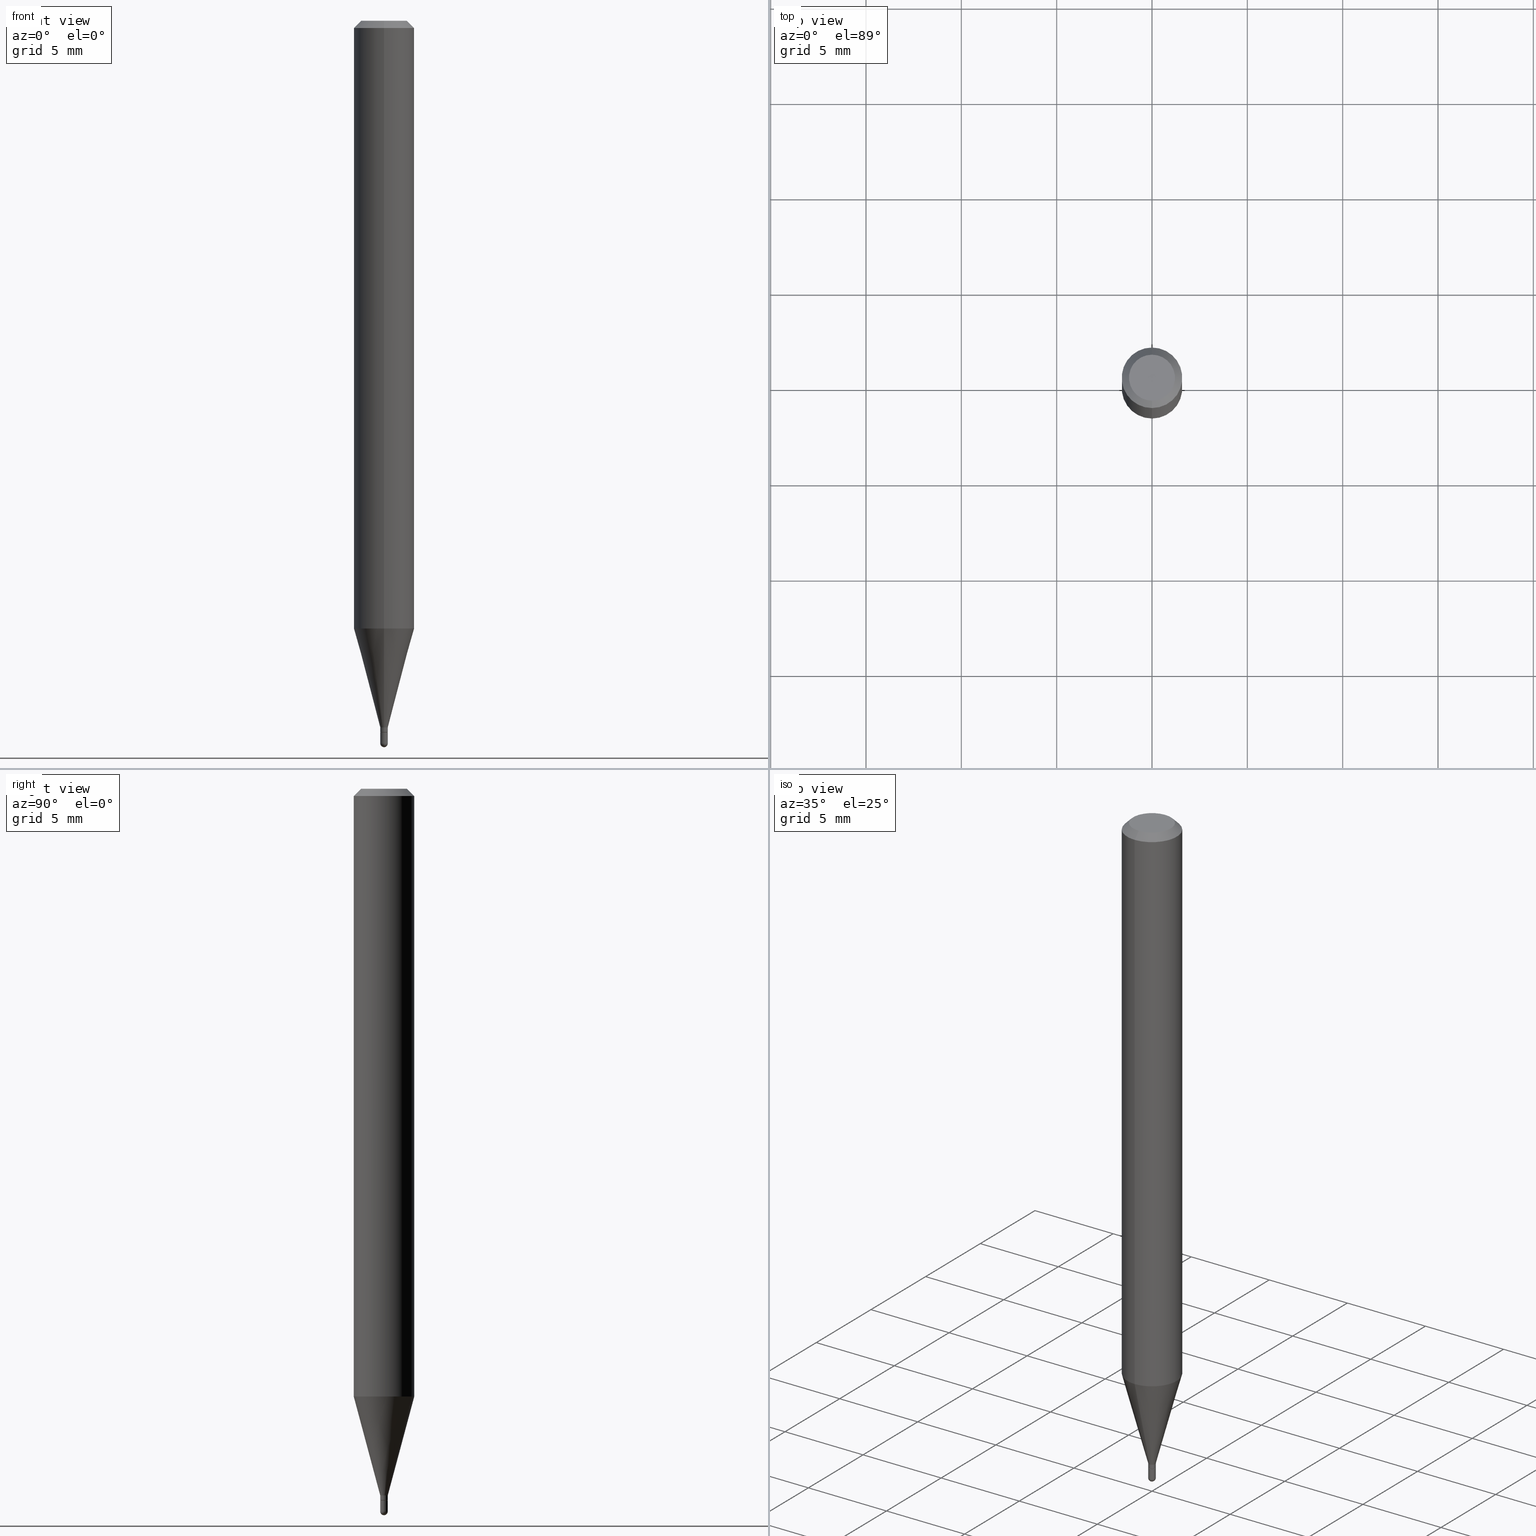
[diagram: canonical four-view strip — front | top / right | iso, engineering-drawing reading convention]
A machine part, canonical four-view strip (front | top / right | iso — engineering-drawing reading convention). The complete STEP part file that produces these views, byte-faithful:
ISO-10303-21;
HEADER;
FILE_DESCRIPTION (( 'STEP AP203' ),
    '1' );
FILE_NAME ('39302.STEP',
    '2024-03-08T12:46:57',
    ( '' ),
    ( '' ),
    'SwSTEP 2.0',
    'SolidWorks 2023',
    '' );
FILE_SCHEMA (( 'CONFIG_CONTROL_DESIGN' ));
ENDSEC;

DATA;
#1 = LINE ( 'NONE', #476, #442 ) ;
#2 = CARTESIAN_POINT ( 'NONE',  ( 3.581875070033715144E-29, -5.140552563667326600E-15, -1.468500000000000805 ) ) ;
#3 = ADVANCED_FACE ( 'NONE', ( #139 ), #146, .T. ) ;
#4 = PERSON_AND_ORGANIZATION_ROLE ( 'creator' ) ;
#5 = VERTEX_POINT ( 'NONE', #147 ) ;
#6 = CARTESIAN_POINT ( 'NONE',  ( 3.658707936704612906E-31, -5.250819779027040466E-17, -0.01500000000000043313 ) ) ;
#7 = APPLICATION_CONTEXT ( 'configuration controlled 3d designs of mechanical parts and assemblies' ) ;
#8 = AXIS2_PLACEMENT_3D ( 'NONE', #173, #135, #216 ) ;
#9 = AXIS2_PLACEMENT_3D ( 'NONE', #503, #312, #76 ) ;
#10 = APPLICATION_PROTOCOL_DEFINITION ( 'international standard', 'config_control_design', 1994, #239 ) ;
#11 = ORIENTED_EDGE ( 'NONE', *, *, #425, .T. ) ;
#12 = PERSON_AND_ORGANIZATION ( #66, #74 ) ;
#13 = EDGE_CURVE ( 'NONE', #84, #385, #509, .T. ) ;
#14 = COORDINATED_UNIVERSAL_TIME_OFFSET ( 5, 0, .BEHIND. ) ;
#15 = CARTESIAN_POINT ( 'NONE',  ( 3.840629472727450339E-16, 0.04750000000000004219, -5.999736927781643760E-16 ) ) ;
#16 = ORIENTED_EDGE ( 'NONE', *, *, #22, .T. ) ;
#17 = APPROVAL_DATE_TIME ( #406, #407 ) ;
#18 = DESIGN_CONTEXT ( 'detailed design', #7, 'design' ) ;
#19 = VERTEX_POINT ( 'NONE', #69 ) ;
#20 = PERSON_AND_ORGANIZATION ( #66, #74 ) ;
#21 = AXIS2_PLACEMENT_3D ( 'NONE', #264, #226, #35 ) ;
#22 = EDGE_CURVE ( 'NONE', #203, #402, #218, .T. ) ;
#23 = APPROVAL_ROLE ( '' ) ;
#24 = DIRECTION ( 'NONE',  ( 1.000000000000000000, -6.982962677686294321E-15, 0.000000000000000000 ) ) ;
#25 = EDGE_CURVE ( 'NONE', #385, #84, #308, .T. ) ;
#26 = CARTESIAN_POINT ( 'NONE',  ( 0.000000000000000000, 0.000000000000000000, 0.000000000000000000 ) ) ;
#27 = CALENDAR_DATE ( 2024, 8, 3 ) ;
#28 = DIRECTION ( 'NONE',  ( 6.982962677686265922E-15, 1.000000000000000000, -3.517254291842738179E-15 ) ) ;
#29 = DIRECTION ( 'NONE',  ( -2.439138624469671930E-29, 3.500546519351259222E-15, 1.000000000000000000 ) ) ;
#30 = AXIS2_PLACEMENT_3D ( 'NONE', #398, #209, #362 ) ;
#31 = EDGE_CURVE ( 'NONE', #361, #507, #276, .T. ) ;
#32 = CARTESIAN_POINT ( 'NONE',  ( 5.542233338931899045E-17, 0.007799999999994273320, -1.459000000000000519 ) ) ;
#33 = FACE_OUTER_BOUND ( 'NONE', #70, .T. ) ;
#34 = ORIENTED_EDGE ( 'NONE', *, *, #400, .F. ) ;
#35 = DIRECTION ( 'NONE',  ( 7.105427357601000281E-15, 1.000000000000000000, 0.000000000000000000 ) ) ;
#36 = DIRECTION ( 'NONE',  ( -2.439138624469671930E-29, 3.500546519351259222E-15, 1.000000000000000000 ) ) ;
#37 = AXIS2_PLACEMENT_3D ( 'NONE', #228, #162, #278 ) ;
#38 = DIRECTION ( 'NONE',  ( -2.439138624469671930E-29, 3.500546519351259222E-15, 1.000000000000000000 ) ) ;
#39 = ADVANCED_FACE ( 'NONE', ( #285 ), #479, .F. ) ;
#40 = CYLINDRICAL_SURFACE ( 'NONE', #197, 0.06250000000000001388 ) ;
#41 = EDGE_LOOP ( 'NONE', ( #432, #236, #460, #282 ) ) ;
#42 = DIRECTION ( 'NONE',  ( 1.000000000000000000, -6.982962677686265922E-15, 4.883557194083112901E-29 ) ) ;
#43 = CALENDAR_DATE ( 2024, 8, 3 ) ;
#44 = FACE_OUTER_BOUND ( 'NONE', #210, .T. ) ;
#45 = ORIENTED_EDGE ( 'NONE', *, *, #400, .T. ) ;
#46 = CIRCLE ( 'NONE', #183, 0.04750000000000004219 ) ;
#47 = PERSON_AND_ORGANIZATION_ROLE ( 'design_supplier' ) ;
#48 = ADVANCED_FACE ( 'NONE', ( #44 ), #376, .T. ) ;
#49 = VERTEX_POINT ( 'NONE', #153 ) ;
#50 = FACE_OUTER_BOUND ( 'NONE', #118, .T. ) ;
#51 = ORIENTED_EDGE ( 'NONE', *, *, #150, .T. ) ;
#52 = PERSON_AND_ORGANIZATION ( #66, #74 ) ;
#53 = ORIENTED_EDGE ( 'NONE', *, *, #215, .T. ) ;
#54 = ORIENTED_EDGE ( 'NONE', *, *, #63, .F. ) ;
#55 = AXIS2_PLACEMENT_3D ( 'NONE', #446, #98, #217 ) ;
#56 = VECTOR ( 'NONE', #496, 39.37007874015748143 ) ;
#57 = DIRECTION ( 'NONE',  ( -4.937700262167293278E-15, -0.7071067811869382602, 0.7071067811861568853 ) ) ;
#58 = CARTESIAN_POINT ( 'NONE',  ( 5.186961971052139529E-17, 0.007299999999994612014, -1.469000000000000306 ) ) ;
#59 = ADVANCED_FACE ( 'NONE', ( #317 ), #113, .T. ) ;
#60 = DIRECTION ( 'NONE',  ( -2.445468806185136877E-29, 3.491481338843145188E-15, 1.000000000000000000 ) ) ;
#61 = CIRCLE ( 'NONE', #443, 0.007799999999999709076 ) ;
#62 = EDGE_CURVE ( 'NONE', #385, #319, #1, .T. ) ;
#63 = EDGE_CURVE ( 'NONE', #49, #507, #61, .T. ) ;
#64 = ADVANCED_FACE ( 'NONE', ( #351 ), #156, .T. ) ;
#65 = CONICAL_SURFACE ( 'NONE', #222, 0.06250000000000001388, 0.7853981633974473908 ) ;
#66 = PERSON ( 'UNSPECIFIED', 'UNSPECIFIED', 'UNSPECIFIED', ('UNSPECIFIED'), ('UNSPECIFIED'), ('UNSPECIFIED') ) ;
#67 = DIRECTION ( 'NONE',  ( -6.982962677686265133E-15, -1.000000000000000000, 3.500546519351259616E-15 ) ) ;
#68 = LINE ( 'NONE', #378, #56 ) ;
#69 = CARTESIAN_POINT ( 'NONE',  ( -3.773273898774342241E-16, -0.04750000000000004219, -2.674217734397944423E-16 ) ) ;
#70 = EDGE_LOOP ( 'NONE', ( #192, #166 ) ) ;
#71 = DIRECTION ( 'NONE',  ( 6.982962677686265922E-15, 1.000000000000000000, -3.500546519351259222E-15 ) ) ;
#72 = DIRECTION ( 'NONE',  ( -6.982962677686265922E-15, -1.000000000000000000, 3.517254291842738179E-15 ) ) ;
#73 = CIRCLE ( 'NONE', #341, 0.007799999999999709076 ) ;
#74 = ORGANIZATION ( 'UNSPECIFIED', 'UNSPECIFIED', '' ) ;
#75 = FACE_OUTER_BOUND ( 'NONE', #248, .T. ) ;
#76 = DIRECTION ( 'NONE',  ( -6.982962677686265922E-15, -1.000000000000000000, 3.500546519351259222E-15 ) ) ;
#77 = ORIENTED_EDGE ( 'NONE', *, *, #221, .F. ) ;
#78 = ORIENTED_EDGE ( 'NONE', *, *, #208, .T. ) ;
#79 = CARTESIAN_POINT ( 'NONE',  ( -4.364351673553612983E-16, -0.06250000000000442701, -1.254856820825980934 ) ) ;
#80 = DIRECTION ( 'NONE',  ( 1.000000000000000000, -6.982962677686266711E-15, 4.876176775795935232E-29 ) ) ;
#81 = EDGE_CURVE ( 'NONE', #19, #246, #46, .T. ) ;
#82 = CARTESIAN_POINT ( 'NONE',  ( 0.000000000000000000, 0.000000000000000000, 0.000000000000000000 ) ) ;
#83 =( NAMED_UNIT ( * ) PLANE_ANGLE_UNIT ( ) SI_UNIT ( $, .RADIAN. ) );
#84 = VERTEX_POINT ( 'NONE', #505 ) ;
#85 = CLOSED_SHELL ( 'NONE', ( #3, #64, #311, #284, #261, #48, #131, #493, #39, #500, #263, #120 ) ) ;
#86 = CIRCLE ( 'NONE', #129, 0.007799999999999380346 ) ;
#87 = APPROVAL_STATUS ( 'not_yet_approved' ) ;
#88 = DIRECTION ( 'NONE',  ( -6.982962677686266711E-15, -1.000000000000000000, 0.000000000000000000 ) ) ;
#89 = EDGE_LOOP ( 'NONE', ( #396, #390, #114, #34 ) ) ;
#90 = ORIENTED_EDGE ( 'NONE', *, *, #367, .T. ) ;
#91 = DIRECTION ( 'NONE',  ( -2.439138624469671930E-29, 3.500546519351259222E-15, 1.000000000000000000 ) ) ;
#92 = ORIENTED_EDGE ( 'NONE', *, *, #306, .F. ) ;
#93 = EDGE_LOOP ( 'NONE', ( #140, #459, #346, #99 ) ) ;
#94 = CC_DESIGN_DATE_AND_TIME_ASSIGNMENT ( #413, #101, ( #418 ) ) ;
#95 = AXIS2_PLACEMENT_3D ( 'NONE', #299, #29, #259 ) ;
#96 = CALENDAR_DATE ( 2024, 8, 3 ) ;
#97 = ORIENTED_EDGE ( 'NONE', *, *, #81, .T. ) ;
#98 = DIRECTION ( 'NONE',  ( -2.439138624469671930E-29, 3.500546519351259222E-15, 1.000000000000000000 ) ) ;
#99 = ORIENTED_EDGE ( 'NONE', *, *, #100, .F. ) ;
#100 = EDGE_CURVE ( 'NONE', #447, #364, #469, .T. ) ;
#101 = DATE_TIME_ROLE ( 'creation_date' ) ;
#102 = AXIS2_PLACEMENT_3D ( 'NONE', #138, #256, #207 ) ;
#103 = CIRCLE ( 'NONE', #185, 0.007299999999999754602 ) ;
#104 = CARTESIAN_POINT ( 'NONE',  ( 3.649128552589461564E-29, -5.209988453821742721E-15, -1.492200000000000193 ) ) ;
#105 = DIRECTION ( 'NONE',  ( -6.982962677686265922E-15, -1.000000000000000000, 0.000000000000000000 ) ) ;
#106 = CC_DESIGN_PERSON_AND_ORGANIZATION_ASSIGNMENT ( #438, #301, ( #494 ) ) ;
#107 = ORIENTED_EDGE ( 'NONE', *, *, #155, .F. ) ;
#108 = DIRECTION ( 'NONE',  ( -2.439138624469671930E-29, 3.500546519351259222E-15, 1.000000000000000000 ) ) ;
#109 = DIRECTION ( 'NONE',  ( -2.439138624469671930E-29, 3.500546519351259222E-15, 1.000000000000000000 ) ) ;
#110 = VECTOR ( 'NONE', #405, 39.37007874015748143 ) ;
#111 = VECTOR ( 'NONE', #36, 39.37007874015748143 ) ;
#112 = EDGE_CURVE ( 'NONE', #411, #477, #272, .T. ) ;
#113 = SPHERICAL_SURFACE ( 'NONE', #158, 0.007800000000000068164 ) ;
#114 = ORIENTED_EDGE ( 'NONE', *, *, #241, .T. ) ;
#115 = DIRECTION ( 'NONE',  ( -1.000000000000000000, 6.982962677686265922E-15, -4.883557194083112340E-29 ) ) ;
#116 = AXIS2_PLACEMENT_3D ( 'NONE', #412, #343, #145 ) ;
#117 = AXIS2_PLACEMENT_3D ( 'NONE', #167, #42, #359 ) ;
#118 = EDGE_LOOP ( 'NONE', ( #358, #328, #92, #489 ) ) ;
#119 = DIRECTION ( 'NONE',  ( -6.982962677686266711E-15, -1.000000000000000000, 0.000000000000000000 ) ) ;
#120 = ADVANCED_FACE ( 'NONE', ( #324 ), #422, .T. ) ;
#121 = APPROVAL_DATE_TIME ( #164, #315 ) ;
#122 = CYLINDRICAL_SURFACE ( 'NONE', #330, 0.007799999999999709076 ) ;
#123 = DIRECTION ( 'NONE',  ( 1.000000000000000000, -6.982962677686265922E-15, 4.883557194083112901E-29 ) ) ;
#124 = CARTESIAN_POINT ( 'NONE',  ( 3.658707936704612906E-31, -5.250819779027040466E-17, -0.01500000000000043313 ) ) ;
#125 = ORIENTED_EDGE ( 'NONE', *, *, #221, .T. ) ;
#126 = CARTESIAN_POINT ( 'NONE',  ( -5.446710888591296590E-17, -0.007800000000004487372, -1.459000000000000519 ) ) ;
#127 = DIRECTION ( 'NONE',  ( -2.439138624469671930E-29, 3.500546519351259222E-15, 1.000000000000000000 ) ) ;
#128 = EDGE_LOOP ( 'NONE', ( #206, #332, #54, #77, #11 ) ) ;
#129 = AXIS2_PLACEMENT_3D ( 'NONE', #180, #224, #339 ) ;
#130 = CALENDAR_DATE ( 2024, 8, 3 ) ;
#131 = ADVANCED_FACE ( 'NONE', ( #75 ), #40, .T. ) ;
#132 = EDGE_LOOP ( 'NONE', ( #392, #51 ) ) ;
#133 = PERSON_AND_ORGANIZATION ( #66, #74 ) ;
#134 = DIRECTION ( 'NONE',  ( 1.000000000000000000, -6.982962677686294321E-15, 0.000000000000000000 ) ) ;
#135 = DIRECTION ( 'NONE',  ( -2.439138624469671930E-29, 3.500546519351259222E-15, 1.000000000000000000 ) ) ;
#136 = ORIENTED_EDGE ( 'NONE', *, *, #355, .F. ) ;
#137 = AXIS2_PLACEMENT_3D ( 'NONE', #193, #508, #119 ) ;
#138 = CARTESIAN_POINT ( 'NONE',  ( 5.446710888598677370E-17, 0.007799999999994580366, -1.469000000000000750 ) ) ;
#139 = FACE_OUTER_BOUND ( 'NONE', #93, .T. ) ;
#140 = ORIENTED_EDGE ( 'NONE', *, *, #379, .T. ) ;
#141 = MANIFOLD_SOLID_BREP ( 'Body-Move/Copy2[1]', #195 ) ;
#142 = DIMENSIONAL_EXPONENTS ( 1.000000000000000000, 0.000000000000000000, 0.000000000000000000, 0.000000000000000000, 0.000000000000000000, 0.000000000000000000, 0.000000000000000000 ) ;
#143 = LOCAL_TIME ( 7, 46, 57.00000000000000000, #14 ) ;
#144 = DIRECTION ( 'NONE',  ( 1.000000000000000000, -6.982962677686294321E-15, 0.000000000000000000 ) ) ;
#145 = DIRECTION ( 'NONE',  ( -6.982962677686265922E-15, -1.000000000000000000, 4.370956789862819572E-15 ) ) ;
#146 = CYLINDRICAL_SURFACE ( 'NONE', #250, 0.007799999999999657901 ) ;
#147 = CARTESIAN_POINT ( 'NONE',  ( -5.097562754707219593E-17, -0.007300000000004897190, -1.469000000000000306 ) ) ;
#148 = AXIS2_PLACEMENT_3D ( 'NONE', #485, #487, #334 ) ;
#149 = VECTOR ( 'NONE', #495, 39.37007874015748143 ) ;
#150 = EDGE_CURVE ( 'NONE', #507, #49, #257, .T. ) ;
#151 = ORIENTED_EDGE ( 'NONE', *, *, #215, .F. ) ;
#152 = CARTESIAN_POINT ( 'NONE',  ( 3.649128552589461564E-29, -5.209988453821742721E-15, -1.492200000000000193 ) ) ;
#153 = CARTESIAN_POINT ( 'NONE',  ( 0.007799999999999709076, -5.183453195646533500E-15, -1.469000000000000750 ) ) ;
#154 = CARTESIAN_POINT ( 'NONE',  ( 3.583094639345949024E-29, -5.142302836927000469E-15, -1.469000000000000306 ) ) ;
#155 = EDGE_CURVE ( 'NONE', #246, #326, #483, .T. ) ;
#156 = CONICAL_SURFACE ( 'NONE', #403, 0.007299999999999754602, 0.7853981633980042787 ) ;
#157 = DIRECTION ( 'NONE',  ( 1.000000000000000000, -6.982962677686266711E-15, 4.876176775795935232E-29 ) ) ;
#158 = AXIS2_PLACEMENT_3D ( 'NONE', #382, #123, #201 ) ;
#159 = CIRCLE ( 'NONE', #502, 0.007799999999999709076 ) ;
#160 = DIRECTION ( 'NONE',  ( -6.982962677686265133E-15, -1.000000000000000000, 3.500546519351259616E-15 ) ) ;
#161 = ORIENTED_EDGE ( 'NONE', *, *, #81, .F. ) ;
#162 = DIRECTION ( 'NONE',  ( -2.439138624469671930E-29, 3.500546519351259222E-15, 1.000000000000000000 ) ) ;
#163 = SECURITY_CLASSIFICATION_LEVEL ( 'unclassified' ) ;
#164 = DATE_AND_TIME ( #43, #354 ) ;
#165 = DIRECTION ( 'NONE',  ( -2.439138624469671930E-29, 3.500546519351259222E-15, 1.000000000000000000 ) ) ;
#166 = ORIENTED_EDGE ( 'NONE', *, *, #454, .F. ) ;
#167 = CARTESIAN_POINT ( 'NONE',  ( 3.434669950589054174E-29, -5.517105378111915335E-15, -1.492200000000000193 ) ) ;
#168 =( NAMED_UNIT ( * ) SI_UNIT ( $, .STERADIAN. ) SOLID_ANGLE_UNIT ( ) );
#169 = DIRECTION ( 'NONE',  ( 5.024295867790855746E-15, 0.7071067811869431452, 0.7071067811861520003 ) ) ;
#170 = CONICAL_SURFACE ( 'NONE', #8, 0.007799999999999380346, 0.2617993877991502960 ) ;
#171 = MECHANICAL_CONTEXT ( 'NONE', #239, 'mechanical' ) ;
#172 = ORIENTED_EDGE ( 'NONE', *, *, #100, .T. ) ;
#173 = CARTESIAN_POINT ( 'NONE',  ( 3.558703253101252922E-29, -5.107297371733488374E-15, -1.459000000000000519 ) ) ;
#174 = ORIENTED_EDGE ( 'NONE', *, *, #25, .T. ) ;
#175 = DATE_AND_TIME ( #27, #143 ) ;
#176 = CC_DESIGN_PERSON_AND_ORGANIZATION_ASSIGNMENT ( #179, #338, ( #418 ) ) ;
#177 = VECTOR ( 'NONE', #327, 39.37007874015748143 ) ;
#178 = CARTESIAN_POINT ( 'NONE',  ( 3.453411092424518502E-29, -5.544816544806560135E-15, -1.500000000000000444 ) ) ;
#179 = PERSON_AND_ORGANIZATION ( #66, #74 ) ;
#180 = CARTESIAN_POINT ( 'NONE',  ( 3.558703253101252922E-29, -5.107297371733488374E-15, -1.459000000000000519 ) ) ;
#181 = APPROVAL_DATE_TIME ( #175, #337 ) ;
#182 = EDGE_CURVE ( 'NONE', #84, #326, #437, .T. ) ;
#183 = AXIS2_PLACEMENT_3D ( 'NONE', #321, #38, #350 ) ;
#184 = CYLINDRICAL_SURFACE ( 'NONE', #200, 0.007799999999999709076 ) ;
#185 = AXIS2_PLACEMENT_3D ( 'NONE', #453, #109, #105 ) ;
#186 = ORIENTED_EDGE ( 'NONE', *, *, #306, .T. ) ;
#187 = EDGE_CURVE ( 'NONE', #203, #411, #363, .T. ) ;
#188 = AXIS2_PLACEMENT_3D ( 'NONE', #6, #254, #492 ) ;
#189 = CARTESIAN_POINT ( 'NONE',  ( 3.558703253101252922E-29, -5.107297371733488374E-15, -1.459000000000000519 ) ) ;
#190 = ADVANCED_FACE ( 'NONE', ( #194 ), #238, .F. ) ;
#191 = CARTESIAN_POINT ( 'NONE',  ( -0.007799999999999709076, 5.542233338928574736E-17, -3.836769370398683487E-31 ) ) ;
#192 = ORIENTED_EDGE ( 'NONE', *, *, #465, .F. ) ;
#193 = CARTESIAN_POINT ( 'NONE',  ( 3.581875070033715144E-29, -5.140552563667326600E-15, -1.468500000000000805 ) ) ;
#194 = FACE_OUTER_BOUND ( 'NONE', #132, .T. ) ;
#195 = CLOSED_SHELL ( 'NONE', ( #333, #59, #190, #375, #458 ) ) ;
#196 = FACE_OUTER_BOUND ( 'NONE', #399, .T. ) ;
#197 = AXIS2_PLACEMENT_3D ( 'NONE', #82, #240, #357 ) ;
#198 = ORIENTED_EDGE ( 'NONE', *, *, #13, .T. ) ;
#199 = DIRECTION ( 'NONE',  ( -6.982962677686265922E-15, -1.000000000000000000, 0.000000000000000000 ) ) ;
#200 = AXIS2_PLACEMENT_3D ( 'NONE', #424, #233, #157 ) ;
#201 = DIRECTION ( 'NONE',  ( -6.982962677686265922E-15, -1.000000000000000000, 0.000000000000000000 ) ) ;
#202 = DIRECTION ( 'NONE',  ( 2.439138624469671930E-29, -3.500546519351259222E-15, -1.000000000000000000 ) ) ;
#203 = VERTEX_POINT ( 'NONE', #178 ) ;
#204 = CARTESIAN_POINT ( 'NONE',  ( -5.446710888591296590E-17, -0.007800000000004487372, -1.459000000000000519 ) ) ;
#205 =( CONVERSION_BASED_UNIT ( 'INCH', #431 ) LENGTH_UNIT ( ) NAMED_UNIT ( #142 ) );
#206 = ORIENTED_EDGE ( 'NONE', *, *, #265, .T. ) ;
#207 = DIRECTION ( 'NONE',  ( -1.000000000000000000, 6.982962677686265922E-15, -4.876176775795935793E-29 ) ) ;
#208 = EDGE_CURVE ( 'NONE', #227, #364, #421, .T. ) ;
#209 = DIRECTION ( 'NONE',  ( 0.000000000000000000, 0.000000000000000000, 1.000000000000000000 ) ) ;
#210 = EDGE_LOOP ( 'NONE', ( #470, #78, #360, #232 ) ) ;
#211 = CONICAL_SURFACE ( 'NONE', #55, 0.007299999999999754602, 0.7853981633980042787 ) ;
#212 = LOCAL_TIME ( 7, 46, 57.00000000000000000, #448 ) ;
#213 = EDGE_LOOP ( 'NONE', ( #388, #440, #277, #356 ) ) ;
#214 = CARTESIAN_POINT ( 'NONE',  ( 4.364351673553921131E-16, 0.06249999999999996531, -0.01500000000000065344 ) ) ;
#215 = EDGE_CURVE ( 'NONE', #319, #326, #490, .T. ) ;
#216 = DIRECTION ( 'NONE',  ( -6.982962677686266711E-15, -1.000000000000000000, 0.000000000000000000 ) ) ;
#217 = DIRECTION ( 'NONE',  ( -6.982962677686265922E-15, -1.000000000000000000, 0.000000000000000000 ) ) ;
#218 = CIRCLE ( 'NONE', #21, 0.007800000000000068164 ) ;
#219 = CARTESIAN_POINT ( 'NONE',  ( 3.649128552589461564E-29, -5.209988453821742721E-15, -1.492200000000000193 ) ) ;
#220 = DIRECTION ( 'NONE',  ( 2.439138624469671930E-29, -3.500546519351259222E-15, -1.000000000000000000 ) ) ;
#221 = EDGE_CURVE ( 'NONE', #477, #49, #291, .T. ) ;
#222 = AXIS2_PLACEMENT_3D ( 'NONE', #450, #220, #28 ) ;
#223 = CIRCLE ( 'NONE', #37, 0.04750000000000004219 ) ;
#224 = DIRECTION ( 'NONE',  ( -2.439138624469671930E-29, 3.500546519351259222E-15, 1.000000000000000000 ) ) ;
#225 = EDGE_CURVE ( 'NONE', #340, #380, #482, .T. ) ;
#226 = DIRECTION ( 'NONE',  ( 1.000000000000000000, -7.105427357601001070E-15, 4.926315508542082329E-29 ) ) ;
#227 = VERTEX_POINT ( 'NONE', #290 ) ;
#228 = CARTESIAN_POINT ( 'NONE',  ( 1.057848892171050886E-44, -1.518179090085169302E-30, -4.336977331089794092E-16 ) ) ;
#229 = AXIS2_PLACEMENT_3D ( 'NONE', #510, #426, #160 ) ;
#230 = CIRCLE ( 'NONE', #348, 0.007799999999999936325 ) ;
#231 = CARTESIAN_POINT ( 'NONE',  ( 3.434669950589054174E-29, -5.517105378111915335E-15, -1.492200000000000193 ) ) ;
#232 = ORIENTED_EDGE ( 'NONE', *, *, #13, .F. ) ;
#233 = DIRECTION ( 'NONE',  ( -2.445468806185136597E-29, 3.491481338843145583E-15, 1.000000000000000000 ) ) ;
#234 = PRODUCT_DEFINITION_SHAPE ( 'NONE', 'NONE',  #418 ) ;
#235 = DIRECTION ( 'NONE',  ( -2.439138624469671930E-29, 3.500546519351259222E-15, 1.000000000000000000 ) ) ;
#236 = ORIENTED_EDGE ( 'NONE', *, *, #225, .T. ) ;
#237 = LINE ( 'NONE', #126, #468 ) ;
#238 = PLANE ( 'NONE',  #102 ) ;
#239 = APPLICATION_CONTEXT ( 'configuration controlled 3d designs of mechanical parts and assemblies' ) ;
#240 = DIRECTION ( 'NONE',  ( -2.439138624469671930E-29, 3.500546519351259222E-15, 1.000000000000000000 ) ) ;
#241 = EDGE_CURVE ( 'NONE', #5, #447, #249, .T. ) ;
#242 = ORIENTED_EDGE ( 'NONE', *, *, #62, .T. ) ;
#243 = PRODUCT_DEFINITION_FORMATION_WITH_SPECIFIED_SOURCE ( 'ANY', '', #494, .NOT_KNOWN. ) ;
#244 = CC_DESIGN_PERSON_AND_ORGANIZATION_ASSIGNMENT ( #12, #47, ( #243 ) ) ;
#245 = EDGE_LOOP ( 'NONE', ( #90, #97 ) ) ;
#246 = VERTEX_POINT ( 'NONE', #15 ) ;
#247 = ADVANCED_BREP_SHAPE_REPRESENTATION ( '39302', ( #141, #462, #30 ), #304 ) ;
#248 = EDGE_LOOP ( 'NONE', ( #373, #198, #242, #136 ) ) ;
#249 = LINE ( 'NONE', #404, #501 ) ;
#250 = AXIS2_PLACEMENT_3D ( 'NONE', #26, #456, #67 ) ;
#251 = LOCAL_TIME ( 7, 46, 57.00000000000000000, #294 ) ;
#252 = ORIENTED_EDGE ( 'NONE', *, *, #484, .F. ) ;
#253 = APPROVAL_STATUS ( 'not_yet_approved' ) ;
#254 = DIRECTION ( 'NONE',  ( -2.439138624469671930E-29, 3.500546519351259222E-15, 1.000000000000000000 ) ) ;
#255 = ORIENTED_EDGE ( 'NONE', *, *, #187, .F. ) ;
#256 = DIRECTION ( 'NONE',  ( 2.438088387897960049E-29, -3.491481338843145188E-15, -1.000000000000000000 ) ) ;
#257 = CIRCLE ( 'NONE', #286, 0.007799999999999709076 ) ;
#258 = AXIS2_PLACEMENT_3D ( 'NONE', #512, #316, #72 ) ;
#259 = DIRECTION ( 'NONE',  ( -6.982962677686265922E-15, -1.000000000000000000, 4.370956789862819572E-15 ) ) ;
#260 = APPROVAL_ROLE ( '' ) ;
#261 = ADVANCED_FACE ( 'NONE', ( #368 ), #170, .T. ) ;
#262 = ORIENTED_EDGE ( 'NONE', *, *, #31, .F. ) ;
#263 = ADVANCED_FACE ( 'NONE', ( #298 ), #211, .T. ) ;
#264 = CARTESIAN_POINT ( 'NONE',  ( 3.434669950589054174E-29, -5.517105378111915335E-15, -1.492200000000000193 ) ) ;
#265 = EDGE_CURVE ( 'NONE', #402, #361, #73, .T. ) ;
#266 = ORIENTED_EDGE ( 'NONE', *, *, #484, .T. ) ;
#267 = CARTESIAN_POINT ( 'NONE',  ( 5.364597654992228212E-17, 0.007299999999994612014, -1.469000000000000306 ) ) ;
#268 = CARTESIAN_POINT ( 'NONE',  ( 3.316907271900979054E-16, 0.04750000000000004219, -3.831248262236746468E-16 ) ) ;
#269 = CARTESIAN_POINT ( 'NONE',  ( 4.440892098500935790E-16, 0.06249999999999996531, -0.01500000000000065344 ) ) ;
#270 = DIRECTION ( 'NONE',  ( -2.445468806185136597E-29, 3.491481338843145583E-15, 1.000000000000000000 ) ) ;
#271 = DIRECTION ( 'NONE',  ( 1.000000000000000000, -6.982962677686294321E-15, 0.000000000000000000 ) ) ;
#272 = CIRCLE ( 'NONE', #329, 0.007799999999999709076 ) ;
#273 = CARTESIAN_POINT ( 'NONE',  ( -0.007799999999999709076, -5.114064936901876606E-15, -1.469000000000000750 ) ) ;
#274 = LOCAL_TIME ( 7, 46, 57.00000000000000000, #331 ) ;
#275 = ORIENTED_EDGE ( 'NONE', *, *, #369, .F. ) ;
#276 = LINE ( 'NONE', #191, #347 ) ;
#277 = ORIENTED_EDGE ( 'NONE', *, *, #25, .F. ) ;
#278 = DIRECTION ( 'NONE',  ( -6.982962677686265133E-15, -1.000000000000000000, 3.500546519351259222E-15 ) ) ;
#279 = SHAPE_DEFINITION_REPRESENTATION ( #234, #247 ) ;
#280 = CARTESIAN_POINT ( 'NONE',  ( 0.000000000000000000, 0.000000000000000000, 0.000000000000000000 ) ) ;
#281 = DIRECTION ( 'NONE',  ( -2.445468806185136597E-29, 3.491481338843145583E-15, 1.000000000000000000 ) ) ;
#282 = ORIENTED_EDGE ( 'NONE', *, *, #241, .F. ) ;
#283 = DIRECTION ( 'NONE',  ( -1.807323732225330534E-15, -0.2588190451025182415, 0.9659258262890689783 ) ) ;
#284 = ADVANCED_FACE ( 'NONE', ( #415 ), #302, .T. ) ;
#285 = FACE_OUTER_BOUND ( 'NONE', #245, .T. ) ;
#286 = AXIS2_PLACEMENT_3D ( 'NONE', #372, #441, #397 ) ;
#287 = EDGE_LOOP ( 'NONE', ( #252, #511, #435, #474 ) ) ;
#288 = CC_DESIGN_SECURITY_CLASSIFICATION ( #318, ( #243 ) ) ;
#289 = CARTESIAN_POINT ( 'NONE',  ( 3.583094639345949024E-29, -5.142302836927000469E-15, -1.469000000000000306 ) ) ;
#290 = CARTESIAN_POINT ( 'NONE',  ( 2.497557716197062816E-16, 0.007799999999994272452, -1.459000000000000519 ) ) ;
#291 = LINE ( 'NONE', #295, #433 ) ;
#292 = EDGE_CURVE ( 'NONE', #364, #227, #86, .T. ) ;
#293 = EDGE_LOOP ( 'NONE', ( #174, #497, #151, #394 ) ) ;
#294 = COORDINATED_UNIVERSAL_TIME_OFFSET ( 5, 0, .BEHIND. ) ;
#295 = CARTESIAN_POINT ( 'NONE',  ( 0.007799999999999709076, -5.446710888595084972E-17, 3.803417885120687718E-31 ) ) ;
#296 = CC_DESIGN_APPROVAL ( #337, ( #418 ) ) ;
#297 = CARTESIAN_POINT ( 'NONE',  ( 4.440892098500627148E-16, 0.06250000000000001388, -2.187841574594537753E-16 ) ) ;
#298 = FACE_OUTER_BOUND ( 'NONE', #89, .T. ) ;
#299 = CARTESIAN_POINT ( 'NONE',  ( 3.060769739855869221E-29, -4.392684676426576223E-15, -1.254856820825981156 ) ) ;
#300 = EDGE_CURVE ( 'NONE', #227, #84, #374, .T. ) ;
#301 = PERSON_AND_ORGANIZATION_ROLE ( 'design_owner' ) ;
#302 = CYLINDRICAL_SURFACE ( 'NONE', #309, 0.06250000000000001388 ) ;
#303 = EDGE_LOOP ( 'NONE', ( #255, #16, #481, #305 ) ) ;
#304 =( GEOMETRIC_REPRESENTATION_CONTEXT ( 3 ) GLOBAL_UNCERTAINTY_ASSIGNED_CONTEXT ( ( #307 ) ) GLOBAL_UNIT_ASSIGNED_CONTEXT ( ( #205, #83, #168 ) ) REPRESENTATION_CONTEXT ( 'NONE', 'WORKASPACE' ) );
#305 = ORIENTED_EDGE ( 'NONE', *, *, #112, .F. ) ;
#306 = EDGE_CURVE ( 'NONE', #361, #411, #381, .T. ) ;
#307 = UNCERTAINTY_MEASURE_WITH_UNIT (LENGTH_MEASURE( 1.000000000000000082E-05 ), #205, 'distance_accuracy_value', 'NONE');
#308 = CIRCLE ( 'NONE', #116, 0.06250000000000002776 ) ;
#309 = AXIS2_PLACEMENT_3D ( 'NONE', #410, #108, #452 ) ;
#310 = DIRECTION ( 'NONE',  ( -2.445468806185136597E-29, 3.491481338843145583E-15, 1.000000000000000000 ) ) ;
#311 = ADVANCED_FACE ( 'NONE', ( #196 ), #377, .T. ) ;
#312 = DIRECTION ( 'NONE',  ( -2.439138624469671650E-29, 3.500546519351259222E-15, 1.000000000000000000 ) ) ;
#313 = DIRECTION ( 'NONE',  ( 6.982962677686265922E-15, 1.000000000000000000, -3.517254291842738179E-15 ) ) ;
#314 = CARTESIAN_POINT ( 'NONE',  ( 5.542233338932245404E-17, 0.007799999999994524855, -1.492200000000000193 ) ) ;
#315 = APPROVAL ( #87, 'UNSPECIFIED' ) ;
#316 = DIRECTION ( 'NONE',  ( -2.439138624469671930E-29, 3.500546519351259222E-15, 1.000000000000000000 ) ) ;
#317 = FACE_OUTER_BOUND ( 'NONE', #303, .T. ) ;
#318 = SECURITY_CLASSIFICATION ( '', '', #163 ) ;
#319 = VERTEX_POINT ( 'NONE', #325 ) ;
#320 = DIRECTION ( 'NONE',  ( -6.982962677686265922E-15, -1.000000000000000000, 0.000000000000000000 ) ) ;
#321 = CARTESIAN_POINT ( 'NONE',  ( 1.057848892171050886E-44, -1.518179090085169302E-30, -4.336977331089794092E-16 ) ) ;
#322 = EDGE_LOOP ( 'NONE', ( #262, #186, #423, #125, #419 ) ) ;
#323 = PRODUCT_RELATED_PRODUCT_CATEGORY ( 'detail', '', ( #494 ) ) ;
#324 = FACE_OUTER_BOUND ( 'NONE', #427, .T. ) ;
#325 = CARTESIAN_POINT ( 'NONE',  ( -4.364351673553913736E-16, -0.06250000000000006939, -0.01500000000000021282 ) ) ;
#326 = VERTEX_POINT ( 'NONE', #269 ) ;
#327 = DIRECTION ( 'NONE',  ( -2.439138624469671930E-29, 3.500546519351259222E-15, 1.000000000000000000 ) ) ;
#328 = ORIENTED_EDGE ( 'NONE', *, *, #187, .T. ) ;
#329 = AXIS2_PLACEMENT_3D ( 'NONE', #430, #434, #271 ) ;
#330 = AXIS2_PLACEMENT_3D ( 'NONE', #280, #429, #80 ) ;
#331 = COORDINATED_UNIVERSAL_TIME_OFFSET ( 5, 0, .BEHIND. ) ;
#332 = ORIENTED_EDGE ( 'NONE', *, *, #31, .T. ) ;
#333 = ADVANCED_FACE ( 'NONE', ( #383 ), #184, .T. ) ;
#334 = DIRECTION ( 'NONE',  ( -6.982962677686266711E-15, -1.000000000000000000, 0.000000000000000000 ) ) ;
#335 = PERSON_AND_ORGANIZATION ( #66, #74 ) ;
#336 = AXIS2_PLACEMENT_3D ( 'NONE', #268, #420, #71 ) ;
#337 = APPROVAL ( #409, 'UNSPECIFIED' ) ;
#338 = PERSON_AND_ORGANIZATION_ROLE ( 'creator' ) ;
#339 = DIRECTION ( 'NONE',  ( -6.982962677686266711E-15, -1.000000000000000000, 0.000000000000000000 ) ) ;
#340 = VERTEX_POINT ( 'NONE', #267 ) ;
#341 = AXIS2_PLACEMENT_3D ( 'NONE', #219, #310, #24 ) ;
#342 = CC_DESIGN_APPROVAL ( #315, ( #318 ) ) ;
#343 = DIRECTION ( 'NONE',  ( -2.439138624469671930E-29, 3.500546519351259222E-15, 1.000000000000000000 ) ) ;
#344 = CC_DESIGN_PERSON_AND_ORGANIZATION_ASSIGNMENT ( #335, #4, ( #243 ) ) ;
#345 = ORIENTED_EDGE ( 'NONE', *, *, #208, .F. ) ;
#346 = ORIENTED_EDGE ( 'NONE', *, *, #292, .F. ) ;
#347 = VECTOR ( 'NONE', #473, 39.37007874015748143 ) ;
#348 = AXIS2_PLACEMENT_3D ( 'NONE', #2, #461, #349 ) ;
#349 = DIRECTION ( 'NONE',  ( -6.982962677686266711E-15, -1.000000000000000000, 0.000000000000000000 ) ) ;
#350 = DIRECTION ( 'NONE',  ( -6.982962677686265133E-15, -1.000000000000000000, 3.500546519351259222E-15 ) ) ;
#351 = FACE_OUTER_BOUND ( 'NONE', #41, .T. ) ;
#352 = AXIS2_PLACEMENT_3D ( 'NONE', #189, #506, #88 ) ;
#353 = DIRECTION ( 'NONE',  ( 1.000000000000000000, -6.982962677686294321E-15, 0.000000000000000000 ) ) ;
#354 = LOCAL_TIME ( 7, 46, 57.00000000000000000, #439 ) ;
#355 = EDGE_CURVE ( 'NONE', #326, #319, #451, .T. ) ;
#356 = ORIENTED_EDGE ( 'NONE', *, *, #395, .F. ) ;
#357 = DIRECTION ( 'NONE',  ( -6.982962677686265922E-15, -1.000000000000000000, 3.500546519351259616E-15 ) ) ;
#358 = ORIENTED_EDGE ( 'NONE', *, *, #22, .F. ) ;
#359 = DIRECTION ( 'NONE',  ( -6.982962677686265922E-15, -1.000000000000000000, 0.000000000000000000 ) ) ;
#360 = ORIENTED_EDGE ( 'NONE', *, *, #395, .T. ) ;
#361 = VERTEX_POINT ( 'NONE', #391 ) ;
#362 = DIRECTION ( 'NONE',  ( 1.000000000000000000, 0.000000000000000000, 0.000000000000000000 ) ) ;
#363 = CIRCLE ( 'NONE', #416, 0.007800000000000068164 ) ;
#364 = VERTEX_POINT ( 'NONE', #204 ) ;
#365 = APPROVAL_PERSON_ORGANIZATION ( #20, #337, #23 ) ;
#366 = PERSON_AND_ORGANIZATION ( #66, #74 ) ;
#367 = EDGE_CURVE ( 'NONE', #246, #19, #223, .T. ) ;
#368 = FACE_OUTER_BOUND ( 'NONE', #213, .T. ) ;
#369 = EDGE_CURVE ( 'NONE', #380, #227, #471, .T. ) ;
#370 = VECTOR ( 'NONE', #127, 39.37007874015748143 ) ;
#371 = AXIS2_PLACEMENT_3D ( 'NONE', #124, #202, #313 ) ;
#372 = CARTESIAN_POINT ( 'NONE',  ( 3.592393676285967459E-29, -5.128986086760582589E-15, -1.469000000000000750 ) ) ;
#373 = ORIENTED_EDGE ( 'NONE', *, *, #182, .F. ) ;
#374 = LINE ( 'NONE', #32, #149 ) ;
#375 = ADVANCED_FACE ( 'NONE', ( #50 ), #386, .T. ) ;
#376 = CONICAL_SURFACE ( 'NONE', #352, 0.007799999999999380346, 0.2617993877991502960 ) ;
#377 = CONICAL_SURFACE ( 'NONE', #371, 0.06250000000000001388, 0.7853981633974473908 ) ;
#378 = CARTESIAN_POINT ( 'NONE',  ( -4.287811248607204268E-16, -0.06250000000000006939, -0.01500000000000021282 ) ) ;
#379 = EDGE_CURVE ( 'NONE', #447, #380, #457, .T. ) ;
#380 = VERTEX_POINT ( 'NONE', #428 ) ;
#381 = CIRCLE ( 'NONE', #480, 0.007799999999999709076 ) ;
#382 = CARTESIAN_POINT ( 'NONE',  ( 3.434669950589054174E-29, -5.517105378111915335E-15, -1.492200000000000193 ) ) ;
#383 = FACE_OUTER_BOUND ( 'NONE', #128, .T. ) ;
#384 = DIRECTION ( 'NONE',  ( -6.982962677686265922E-15, -1.000000000000000000, 0.000000000000000000 ) ) ;
#385 = VERTEX_POINT ( 'NONE', #79 ) ;
#386 = SPHERICAL_SURFACE ( 'NONE', #117, 0.007800000000000068164 ) ;
#387 = CARTESIAN_POINT ( 'NONE',  ( 3.592393676285967459E-29, -5.128986086760582589E-15, -1.469000000000000750 ) ) ;
#388 = ORIENTED_EDGE ( 'NONE', *, *, #292, .T. ) ;
#389 = APPROVAL_PERSON_ORGANIZATION ( #133, #407, #260 ) ;
#390 = ORIENTED_EDGE ( 'NONE', *, *, #454, .T. ) ;
#391 = CARTESIAN_POINT ( 'NONE',  ( -0.007799999999999709076, -5.114064936901876606E-15, -1.492200000000000193 ) ) ;
#392 = ORIENTED_EDGE ( 'NONE', *, *, #63, .T. ) ;
#393 =( LENGTH_UNIT ( ) NAMED_UNIT ( * ) SI_UNIT ( $, .METRE. ) );
#394 = ORIENTED_EDGE ( 'NONE', *, *, #62, .F. ) ;
#395 = EDGE_CURVE ( 'NONE', #364, #385, #237, .T. ) ;
#396 = ORIENTED_EDGE ( 'NONE', *, *, #225, .F. ) ;
#397 = DIRECTION ( 'NONE',  ( 1.000000000000000000, -6.982962677686294321E-15, 0.000000000000000000 ) ) ;
#398 = CARTESIAN_POINT ( 'NONE',  ( 0.000000000000000000, 0.000000000000000000, 0.000000000000000000 ) ) ;
#399 = EDGE_LOOP ( 'NONE', ( #161, #266, #53, #107 ) ) ;
#400 = EDGE_CURVE ( 'NONE', #380, #447, #230, .T. ) ;
#401 = DATE_TIME_ROLE ( 'classification_date' ) ;
#402 = VERTEX_POINT ( 'NONE', #314 ) ;
#403 = AXIS2_PLACEMENT_3D ( 'NONE', #154, #165, #384 ) ;
#404 = CARTESIAN_POINT ( 'NONE',  ( -5.097562754707219593E-17, -0.007300000000004897190, -1.469000000000000306 ) ) ;
#405 = DIRECTION ( 'NONE',  ( 4.937700262164543309E-15, 0.7071067811865444641, -0.7071067811865505703 ) ) ;
#406 = DATE_AND_TIME ( #96, #251 ) ;
#407 = APPROVAL ( #253, 'UNSPECIFIED' ) ;
#408 = APPLICATION_PROTOCOL_DEFINITION ( 'international standard', 'config_control_design', 1994, #7 ) ;
#409 = APPROVAL_STATUS ( 'not_yet_approved' ) ;
#410 = CARTESIAN_POINT ( 'NONE',  ( 0.000000000000000000, 0.000000000000000000, 0.000000000000000000 ) ) ;
#411 = VERTEX_POINT ( 'NONE', #504 ) ;
#412 = CARTESIAN_POINT ( 'NONE',  ( 3.060769739855869221E-29, -4.392684676426576223E-15, -1.254856820825981156 ) ) ;
#413 = DATE_AND_TIME ( #498, #212 ) ;
#414 = FACE_OUTER_BOUND ( 'NONE', #287, .T. ) ;
#415 = FACE_OUTER_BOUND ( 'NONE', #293, .T. ) ;
#416 = AXIS2_PLACEMENT_3D ( 'NONE', #231, #115, #199 ) ;
#417 = CIRCLE ( 'NONE', #491, 0.007299999999999754602 ) ;
#418 = PRODUCT_DEFINITION ( 'UNKNOWN', '', #243, #18 ) ;
#419 = ORIENTED_EDGE ( 'NONE', *, *, #150, .F. ) ;
#420 = DIRECTION ( 'NONE',  ( 2.439138624469671650E-29, -3.500546519351259222E-15, -1.000000000000000000 ) ) ;
#421 = CIRCLE ( 'NONE', #148, 0.007799999999999380346 ) ;
#422 = CYLINDRICAL_SURFACE ( 'NONE', #229, 0.007799999999999657901 ) ;
#423 = ORIENTED_EDGE ( 'NONE', *, *, #112, .T. ) ;
#424 = CARTESIAN_POINT ( 'NONE',  ( 0.000000000000000000, 0.000000000000000000, 0.000000000000000000 ) ) ;
#425 = EDGE_CURVE ( 'NONE', #477, #402, #159, .T. ) ;
#426 = DIRECTION ( 'NONE',  ( -2.439138624469671930E-29, 3.500546519351259222E-15, 1.000000000000000000 ) ) ;
#427 = EDGE_LOOP ( 'NONE', ( #275, #45, #172, #345 ) ) ;
#428 = CARTESIAN_POINT ( 'NONE',  ( 5.542233338932299022E-17, 0.007799999999994770318, -1.468500000000000805 ) ) ;
#429 = DIRECTION ( 'NONE',  ( -2.445468806185136597E-29, 3.491481338843145583E-15, 1.000000000000000000 ) ) ;
#430 = CARTESIAN_POINT ( 'NONE',  ( 3.649128552589461564E-29, -5.209988453821742721E-15, -1.492200000000000193 ) ) ;
#431 = LENGTH_MEASURE_WITH_UNIT ( LENGTH_MEASURE( 0.02539999999999999897 ), #393 );
#432 = ORIENTED_EDGE ( 'NONE', *, *, #465, .T. ) ;
#433 = VECTOR ( 'NONE', #60, 39.37007874015748143 ) ;
#434 = DIRECTION ( 'NONE',  ( -2.445468806185136597E-29, 3.491481338843145583E-15, 1.000000000000000000 ) ) ;
#435 = ORIENTED_EDGE ( 'NONE', *, *, #155, .T. ) ;
#436 = DATE_AND_TIME ( #130, #274 ) ;
#437 = LINE ( 'NONE', #297, #177 ) ;
#438 = PERSON_AND_ORGANIZATION ( #66, #74 ) ;
#439 = COORDINATED_UNIVERSAL_TIME_OFFSET ( 5, 0, .BEHIND. ) ;
#440 = ORIENTED_EDGE ( 'NONE', *, *, #300, .T. ) ;
#441 = DIRECTION ( 'NONE',  ( -2.445468806185136597E-29, 3.491481338843145583E-15, 1.000000000000000000 ) ) ;
#442 = VECTOR ( 'NONE', #235, 39.37007874015748143 ) ;
#443 = AXIS2_PLACEMENT_3D ( 'NONE', #387, #281, #353 ) ;
#444 = APPROVAL_PERSON_ORGANIZATION ( #366, #315, #486 ) ;
#445 = CC_DESIGN_PERSON_AND_ORGANIZATION_ASSIGNMENT ( #52, #475, ( #318 ) ) ;
#446 = CARTESIAN_POINT ( 'NONE',  ( 3.583094639345949024E-29, -5.142302836927000469E-15, -1.469000000000000306 ) ) ;
#447 = VERTEX_POINT ( 'NONE', #478 ) ;
#448 = COORDINATED_UNIVERSAL_TIME_OFFSET ( 5, 0, .BEHIND. ) ;
#449 = DIRECTION ( 'NONE',  ( -2.445468806185136597E-29, 3.491481338843145583E-15, 1.000000000000000000 ) ) ;
#450 = CARTESIAN_POINT ( 'NONE',  ( 3.658707936704612906E-31, -5.250819779027040466E-17, -0.01500000000000043313 ) ) ;
#451 = CIRCLE ( 'NONE', #258, 0.06250000000000001388 ) ;
#452 = DIRECTION ( 'NONE',  ( -6.982962677686265922E-15, -1.000000000000000000, 3.500546519351259616E-15 ) ) ;
#453 = CARTESIAN_POINT ( 'NONE',  ( 3.583094639345949024E-29, -5.142302836927000469E-15, -1.469000000000000306 ) ) ;
#454 = EDGE_CURVE ( 'NONE', #340, #5, #417, .T. ) ;
#455 = CARTESIAN_POINT ( 'NONE',  ( 0.007799999999999709076, -5.223954379177113172E-15, -1.492200000000000193 ) ) ;
#456 = DIRECTION ( 'NONE',  ( -2.439138624469671930E-29, 3.500546519351259222E-15, 1.000000000000000000 ) ) ;
#457 = CIRCLE ( 'NONE', #137, 0.007799999999999936325 ) ;
#458 = ADVANCED_FACE ( 'NONE', ( #472 ), #122, .T. ) ;
#459 = ORIENTED_EDGE ( 'NONE', *, *, #369, .T. ) ;
#460 = ORIENTED_EDGE ( 'NONE', *, *, #379, .F. ) ;
#461 = DIRECTION ( 'NONE',  ( -2.439138624469671930E-29, 3.500546519351259222E-15, 1.000000000000000000 ) ) ;
#462 = MANIFOLD_SOLID_BREP ( 'Body-Move/Copy2[2]', #85 ) ;
#463 = CARTESIAN_POINT ( 'NONE',  ( -5.446710888595047994E-17, -0.007799999999999657901, 2.730426285093862595E-17 ) ) ;
#464 = PLANE ( 'NONE',  #9 ) ;
#465 = EDGE_CURVE ( 'NONE', #5, #340, #103, .T. ) ;
#466 = CARTESIAN_POINT ( 'NONE',  ( 5.542233338928537758E-17, 0.007799999999999657901, -2.730426285093862595E-17 ) ) ;
#467 = VECTOR ( 'NONE', #169, 39.37007874015748143 ) ;
#468 = VECTOR ( 'NONE', #283, 39.37007874015748143 ) ;
#469 = LINE ( 'NONE', #463, #370 ) ;
#470 = ORIENTED_EDGE ( 'NONE', *, *, #300, .F. ) ;
#471 = LINE ( 'NONE', #466, #111 ) ;
#472 = FACE_OUTER_BOUND ( 'NONE', #322, .T. ) ;
#473 = DIRECTION ( 'NONE',  ( -2.445468806185136877E-29, 3.491481338843145188E-15, 1.000000000000000000 ) ) ;
#474 = ORIENTED_EDGE ( 'NONE', *, *, #355, .T. ) ;
#475 = PERSON_AND_ORGANIZATION_ROLE ( 'classification_officer' ) ;
#476 = CARTESIAN_POINT ( 'NONE',  ( -4.364351673553917187E-16, -0.06250000000000001388, 2.187841574594537753E-16 ) ) ;
#477 = VERTEX_POINT ( 'NONE', #455 ) ;
#478 = CARTESIAN_POINT ( 'NONE',  ( -5.446710888591678695E-17, -0.007800000000005102331, -1.468500000000000805 ) ) ;
#479 = PLANE ( 'NONE',  #336 ) ;
#480 = AXIS2_PLACEMENT_3D ( 'NONE', #104, #449, #144 ) ;
#481 = ORIENTED_EDGE ( 'NONE', *, *, #425, .F. ) ;
#482 = LINE ( 'NONE', #58, #467 ) ;
#483 = LINE ( 'NONE', #214, #110 ) ;
#484 = EDGE_CURVE ( 'NONE', #19, #319, #68, .T. ) ;
#485 = CARTESIAN_POINT ( 'NONE',  ( 3.558703253101252922E-29, -5.107297371733488374E-15, -1.459000000000000519 ) ) ;
#486 = APPROVAL_ROLE ( '' ) ;
#487 = DIRECTION ( 'NONE',  ( -2.439138624469671930E-29, 3.500546519351259222E-15, 1.000000000000000000 ) ) ;
#488 = CC_DESIGN_DATE_AND_TIME_ASSIGNMENT ( #436, #401, ( #318 ) ) ;
#489 = ORIENTED_EDGE ( 'NONE', *, *, #265, .F. ) ;
#490 = CIRCLE ( 'NONE', #188, 0.06250000000000001388 ) ;
#491 = AXIS2_PLACEMENT_3D ( 'NONE', #289, #91, #320 ) ;
#492 = DIRECTION ( 'NONE',  ( -6.982962677686265922E-15, -1.000000000000000000, 3.517254291842738179E-15 ) ) ;
#493 = ADVANCED_FACE ( 'NONE', ( #414 ), #65, .T. ) ;
#494 = PRODUCT ( '39302', '39302', '', ( #171 ) ) ;
#495 = DIRECTION ( 'NONE',  ( 1.839019923739600710E-15, 0.2588190451025250138, 0.9659258262890670910 ) ) ;
#496 = DIRECTION ( 'NONE',  ( -4.851104656540959542E-15, -0.7071067811865493491, -0.7071067811865456854 ) ) ;
#497 = ORIENTED_EDGE ( 'NONE', *, *, #182, .T. ) ;
#498 = CALENDAR_DATE ( 2024, 8, 3 ) ;
#499 = CC_DESIGN_APPROVAL ( #407, ( #243 ) ) ;
#500 = ADVANCED_FACE ( 'NONE', ( #33 ), #464, .F. ) ;
#501 = VECTOR ( 'NONE', #57, 39.37007874015748143 ) ;
#502 = AXIS2_PLACEMENT_3D ( 'NONE', #152, #270, #134 ) ;
#503 = CARTESIAN_POINT ( 'NONE',  ( 3.583094639345950145E-29, -5.142302836927001258E-15, -1.469000000000000750 ) ) ;
#504 = CARTESIAN_POINT ( 'NONE',  ( -5.446710888591666985E-17, -0.007800000000005251517, -1.492200000000000193 ) ) ;
#505 = CARTESIAN_POINT ( 'NONE',  ( 4.440892098500931845E-16, 0.06249999999999562156, -1.254856820825981378 ) ) ;
#506 = DIRECTION ( 'NONE',  ( -2.439138624469671930E-29, 3.500546519351259222E-15, 1.000000000000000000 ) ) ;
#507 = VERTEX_POINT ( 'NONE', #273 ) ;
#508 = DIRECTION ( 'NONE',  ( -2.439138624469671930E-29, 3.500546519351259222E-15, 1.000000000000000000 ) ) ;
#509 = CIRCLE ( 'NONE', #95, 0.06250000000000002776 ) ;
#510 = CARTESIAN_POINT ( 'NONE',  ( 0.000000000000000000, 0.000000000000000000, 0.000000000000000000 ) ) ;
#511 = ORIENTED_EDGE ( 'NONE', *, *, #367, .F. ) ;
#512 = CARTESIAN_POINT ( 'NONE',  ( 3.658707936704612906E-31, -5.250819779027040466E-17, -0.01500000000000043313 ) ) ;
ENDSEC;
END-ISO-10303-21;
